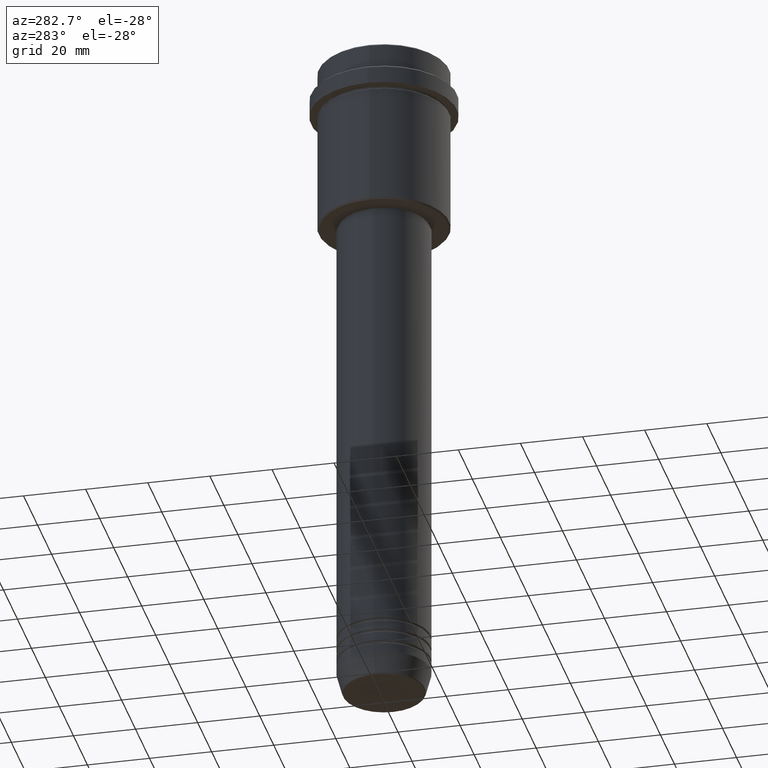
[diagram: clean part render]
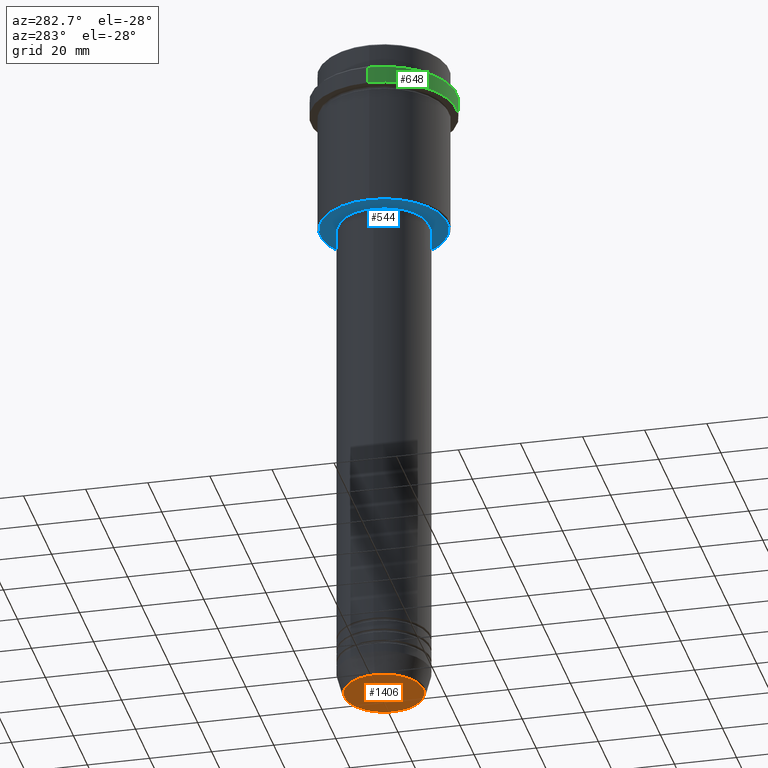
[diagram: same view with three faces highlighted in distinct colors, each labeled with its STEP entity id]
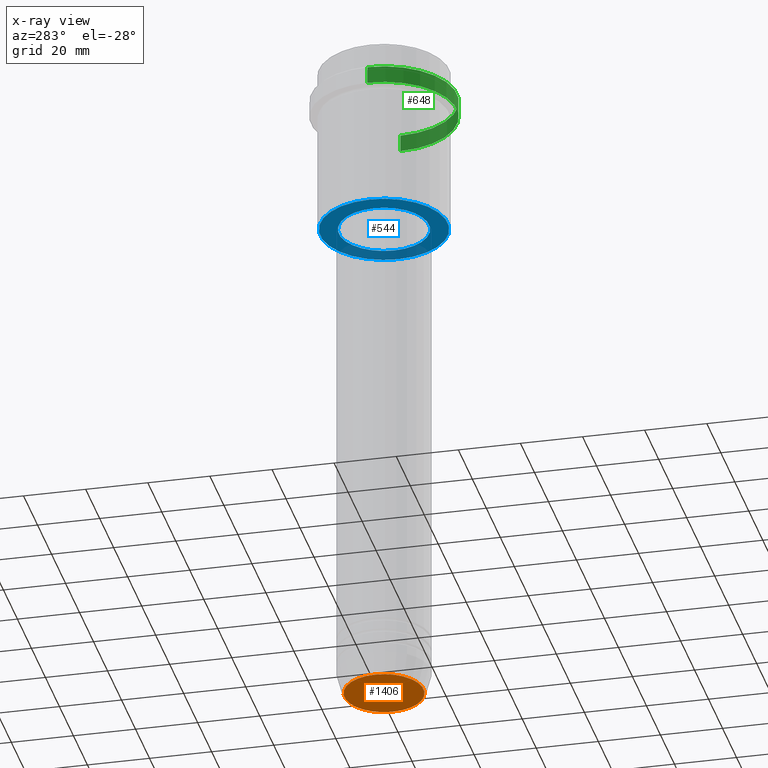
[diagram: x-ray of the same camera — body ghosted, the three highlighted faces saturated]
A machine part, auxiliary view with three faces highlighted in distinct colors.
The next image is the same camera in x-ray (body ghosted, the three faces saturated) — at least one of them is partly hidden behind the body in this view.
Their STEP definitions:

[orange] entity #1406 — the highlighted planar face has unit normal (0, -0, 1).
#140 = CIRCLE ( 'NONE', #1214, 12.74069215899265828 ) ;
#149 = PLANE ( 'NONE',  #1374 ) ;
#214 = CIRCLE ( 'NONE', #776, 12.74069215899265828 ) ;
#252 = FACE_OUTER_BOUND ( 'NONE', #1014, .T. ) ;
#266 = CARTESIAN_POINT ( 'NONE',  ( 0.000000000000000000, 0.000000000000000000, -220.0000000000000284 ) ) ;
#376 = DIRECTION ( 'NONE',  ( 1.000000000000000000, 0.000000000000000000, 0.000000000000000000 ) ) ;
#387 = ORIENTED_EDGE ( 'NONE', *, *, #983, .T. ) ;
#434 = CARTESIAN_POINT ( 'NONE',  ( -12.74069215899265828, 1.589857736427681035E-15, -220.0000000000000284 ) ) ;
#461 = EDGE_CURVE ( 'NONE', #913, #793, #214, .T. ) ;
#467 = CARTESIAN_POINT ( 'NONE',  ( 0.000000000000000000, 0.000000000000000000, -220.0000000000000284 ) ) ;
#487 = CARTESIAN_POINT ( 'NONE',  ( 0.000000000000000000, 0.000000000000000000, -220.0000000000000284 ) ) ;
#581 = ORIENTED_EDGE ( 'NONE', *, *, #461, .T. ) ;
#609 = DIRECTION ( 'NONE',  ( 0.000000000000000000, 0.000000000000000000, -1.000000000000000000 ) ) ;
#678 = DIRECTION ( 'NONE',  ( 0.000000000000000000, 0.000000000000000000, -1.000000000000000000 ) ) ;
#693 = DIRECTION ( 'NONE',  ( 1.000000000000000000, 0.000000000000000000, 0.000000000000000000 ) ) ;
#776 = AXIS2_PLACEMENT_3D ( 'NONE', #467, #609, #816 ) ;
#793 = VERTEX_POINT ( 'NONE', #434 ) ;
#816 = DIRECTION ( 'NONE',  ( 1.000000000000000000, 0.000000000000000000, 0.000000000000000000 ) ) ;
#913 = VERTEX_POINT ( 'NONE', #1048 ) ;
#983 = EDGE_CURVE ( 'NONE', #793, #913, #140, .T. ) ;
#1014 = EDGE_LOOP ( 'NONE', ( #581, #387 ) ) ;
#1048 = CARTESIAN_POINT ( 'NONE',  ( 12.74069215899265828, 0.000000000000000000, -220.0000000000000284 ) ) ;
#1121 = DIRECTION ( 'NONE',  ( 0.000000000000000000, -0.000000000000000000, 1.000000000000000000 ) ) ;
#1214 = AXIS2_PLACEMENT_3D ( 'NONE', #487, #678, #376 ) ;
#1374 = AXIS2_PLACEMENT_3D ( 'NONE', #266, #1121, #693 ) ;
#1406 = ADVANCED_FACE ( 'NONE', ( #252 ), #149, .F. ) ;

[blue] entity #544 — the highlighted planar face has unit normal (0, 0, -1).
#9 = DIRECTION ( 'NONE',  ( 1.000000000000000000, 0.000000000000000000, 0.000000000000000000 ) ) ;
#28 = DIRECTION ( 'NONE',  ( -1.000000000000000000, 0.000000000000000000, 0.000000000000000000 ) ) ;
#65 = DIRECTION ( 'NONE',  ( 0.000000000000000000, 0.000000000000000000, -1.000000000000000000 ) ) ;
#76 = EDGE_LOOP ( 'NONE', ( #833, #598 ) ) ;
#188 = VERTEX_POINT ( 'NONE', #647 ) ;
#321 = CARTESIAN_POINT ( 'NONE',  ( -14.49999999999999467, 1.775737858763661620E-15, -55.00000000000002132 ) ) ;
#333 = CARTESIAN_POINT ( 'NONE',  ( 0.000000000000000000, 0.000000000000000000, -55.00000000000002132 ) ) ;
#347 = DIRECTION ( 'NONE',  ( 1.000000000000000000, 0.000000000000000000, 0.000000000000000000 ) ) ;
#383 = CARTESIAN_POINT ( 'NONE',  ( 0.000000000000000000, 21.00000000000000000, -55.00000000000002132 ) ) ;
#413 = EDGE_CURVE ( 'NONE', #1237, #188, #430, .T. ) ;
#430 = CIRCLE ( 'NONE', #1230, 14.49999999999999467 ) ;
#441 = DIRECTION ( 'NONE',  ( -1.000000000000000000, 0.000000000000000000, 0.000000000000000000 ) ) ;
#444 = EDGE_CURVE ( 'NONE', #810, #813, #1029, .T. ) ;
#493 = CARTESIAN_POINT ( 'NONE',  ( 0.000000000000000000, 0.000000000000000000, -55.00000000000002132 ) ) ;
#544 = ADVANCED_FACE ( 'NONE', ( #1049, #823 ), #716, .T. ) ;
#563 = CARTESIAN_POINT ( 'NONE',  ( 20.49999999999998934, 0.000000000000000000, -55.00000000000002132 ) ) ;
#597 = AXIS2_PLACEMENT_3D ( 'NONE', #493, #1024, #28 ) ;
#598 = ORIENTED_EDGE ( 'NONE', *, *, #413, .T. ) ;
#647 = CARTESIAN_POINT ( 'NONE',  ( 14.49999999999999467, 0.000000000000000000, -55.00000000000002132 ) ) ;
#682 = DIRECTION ( 'NONE',  ( -1.000000000000000000, 0.000000000000000000, -0.000000000000000000 ) ) ;
#716 = PLANE ( 'NONE',  #1343 ) ;
#717 = EDGE_CURVE ( 'NONE', #813, #810, #1415, .T. ) ;
#727 = DIRECTION ( 'NONE',  ( 0.000000000000000000, 0.000000000000000000, -1.000000000000000000 ) ) ;
#775 = DIRECTION ( 'NONE',  ( -0.000000000000000000, -0.000000000000000000, 1.000000000000000000 ) ) ;
#802 = CIRCLE ( 'NONE', #1347, 14.49999999999999467 ) ;
#809 = ORIENTED_EDGE ( 'NONE', *, *, #444, .T. ) ;
#810 = VERTEX_POINT ( 'NONE', #1109 ) ;
#813 = VERTEX_POINT ( 'NONE', #563 ) ;
#823 = FACE_BOUND ( 'NONE', #76, .T. ) ;
#833 = ORIENTED_EDGE ( 'NONE', *, *, #1202, .T. ) ;
#840 = CARTESIAN_POINT ( 'NONE',  ( 0.000000000000000000, 0.000000000000000000, -55.00000000000002132 ) ) ;
#844 = EDGE_LOOP ( 'NONE', ( #1181, #809 ) ) ;
#997 = CARTESIAN_POINT ( 'NONE',  ( 0.000000000000000000, 0.000000000000000000, -55.00000000000002132 ) ) ;
#1024 = DIRECTION ( 'NONE',  ( 0.000000000000000000, 0.000000000000000000, -1.000000000000000000 ) ) ;
#1029 = CIRCLE ( 'NONE', #597, 20.49999999999998934 ) ;
#1049 = FACE_OUTER_BOUND ( 'NONE', #844, .T. ) ;
#1109 = CARTESIAN_POINT ( 'NONE',  ( -20.49999999999998934, 2.541142108230757480E-15, -55.00000000000002132 ) ) ;
#1181 = ORIENTED_EDGE ( 'NONE', *, *, #717, .T. ) ;
#1202 = EDGE_CURVE ( 'NONE', #188, #1237, #802, .T. ) ;
#1230 = AXIS2_PLACEMENT_3D ( 'NONE', #997, #775, #9 ) ;
#1237 = VERTEX_POINT ( 'NONE', #321 ) ;
#1259 = AXIS2_PLACEMENT_3D ( 'NONE', #840, #727, #441 ) ;
#1343 = AXIS2_PLACEMENT_3D ( 'NONE', #383, #65, #682 ) ;
#1347 = AXIS2_PLACEMENT_3D ( 'NONE', #333, #1410, #347 ) ;
#1410 = DIRECTION ( 'NONE',  ( -0.000000000000000000, -0.000000000000000000, 1.000000000000000000 ) ) ;
#1415 = CIRCLE ( 'NONE', #1259, 20.49999999999998934 ) ;

[green] entity #648 — the highlighted cylindrical surface (partial cylindrical patch) has radius 23.5 mm, axis along (-0, -0, 1).
#2 = CARTESIAN_POINT ( 'NONE',  ( -23.50000000000000000, 2.877919977996280320E-15, 0.000000000000000000 ) ) ;
#74 = ORIENTED_EDGE ( 'NONE', *, *, #1158, .F. ) ;
#83 = CARTESIAN_POINT ( 'NONE',  ( -23.50000000000000000, 2.877919977996280320E-15, -9.499999999999971578 ) ) ;
#102 = VECTOR ( 'NONE', #894, 1000.000000000000000 ) ;
#137 = CIRCLE ( 'NONE', #941, 23.50000000000000355 ) ;
#146 = EDGE_LOOP ( 'NONE', ( #74, #947, #1124, #208 ) ) ;
#191 = CARTESIAN_POINT ( 'NONE',  ( -23.50000000000000711, 2.877919977996281109E-15, -15.00000000000000000 ) ) ;
#197 = EDGE_CURVE ( 'NONE', #1013, #1242, #137, .T. ) ;
#208 = ORIENTED_EDGE ( 'NONE', *, *, #1178, .T. ) ;
#232 = DIRECTION ( 'NONE',  ( 1.000000000000000000, 0.000000000000000000, 0.000000000000000000 ) ) ;
#245 = CARTESIAN_POINT ( 'NONE',  ( 23.50000000000000355, 0.000000000000000000, -15.00000000000000000 ) ) ;
#263 = DIRECTION ( 'NONE',  ( -0.000000000000000000, -0.000000000000000000, 1.000000000000000000 ) ) ;
#316 = DIRECTION ( 'NONE',  ( -0.000000000000000000, -0.000000000000000000, 1.000000000000000000 ) ) ;
#317 = LINE ( 'NONE', #2, #102 ) ;
#356 = CARTESIAN_POINT ( 'NONE',  ( 23.50000000000000000, 0.000000000000000000, -9.499999999999971578 ) ) ;
#427 = CYLINDRICAL_SURFACE ( 'NONE', #895, 23.50000000000000000 ) ;
#514 = DIRECTION ( 'NONE',  ( 1.000000000000000000, 0.000000000000000000, 0.000000000000000000 ) ) ;
#636 = FACE_OUTER_BOUND ( 'NONE', #146, .T. ) ;
#648 = ADVANCED_FACE ( 'NONE', ( #636 ), #427, .T. ) ;
#689 = LINE ( 'NONE', #1134, #1170 ) ;
#691 = VERTEX_POINT ( 'NONE', #83 ) ;
#739 = CARTESIAN_POINT ( 'NONE',  ( 0.000000000000000000, 0.000000000000000000, 0.000000000000000000 ) ) ;
#854 = CIRCLE ( 'NONE', #1308, 23.50000000000000000 ) ;
#888 = CARTESIAN_POINT ( 'NONE',  ( 0.000000000000000000, 0.000000000000000000, -9.499999999999971578 ) ) ;
#894 = DIRECTION ( 'NONE',  ( -0.000000000000000000, -0.000000000000000000, 1.000000000000000000 ) ) ;
#895 = AXIS2_PLACEMENT_3D ( 'NONE', #739, #1395, #1269 ) ;
#932 = EDGE_CURVE ( 'NONE', #1242, #1375, #689, .T. ) ;
#941 = AXIS2_PLACEMENT_3D ( 'NONE', #1063, #316, #514 ) ;
#947 = ORIENTED_EDGE ( 'NONE', *, *, #197, .T. ) ;
#1013 = VERTEX_POINT ( 'NONE', #191 ) ;
#1063 = CARTESIAN_POINT ( 'NONE',  ( 0.000000000000000000, 0.000000000000000000, -15.00000000000000000 ) ) ;
#1090 = DIRECTION ( 'NONE',  ( 0.000000000000000000, 0.000000000000000000, -1.000000000000000000 ) ) ;
#1124 = ORIENTED_EDGE ( 'NONE', *, *, #932, .T. ) ;
#1134 = CARTESIAN_POINT ( 'NONE',  ( 23.50000000000000000, 0.000000000000000000, 0.000000000000000000 ) ) ;
#1158 = EDGE_CURVE ( 'NONE', #1013, #691, #317, .T. ) ;
#1170 = VECTOR ( 'NONE', #263, 1000.000000000000000 ) ;
#1178 = EDGE_CURVE ( 'NONE', #1375, #691, #854, .T. ) ;
#1242 = VERTEX_POINT ( 'NONE', #245 ) ;
#1269 = DIRECTION ( 'NONE',  ( 1.000000000000000000, 0.000000000000000000, 0.000000000000000000 ) ) ;
#1308 = AXIS2_PLACEMENT_3D ( 'NONE', #888, #1090, #232 ) ;
#1375 = VERTEX_POINT ( 'NONE', #356 ) ;
#1395 = DIRECTION ( 'NONE',  ( -0.000000000000000000, -0.000000000000000000, 1.000000000000000000 ) ) ;